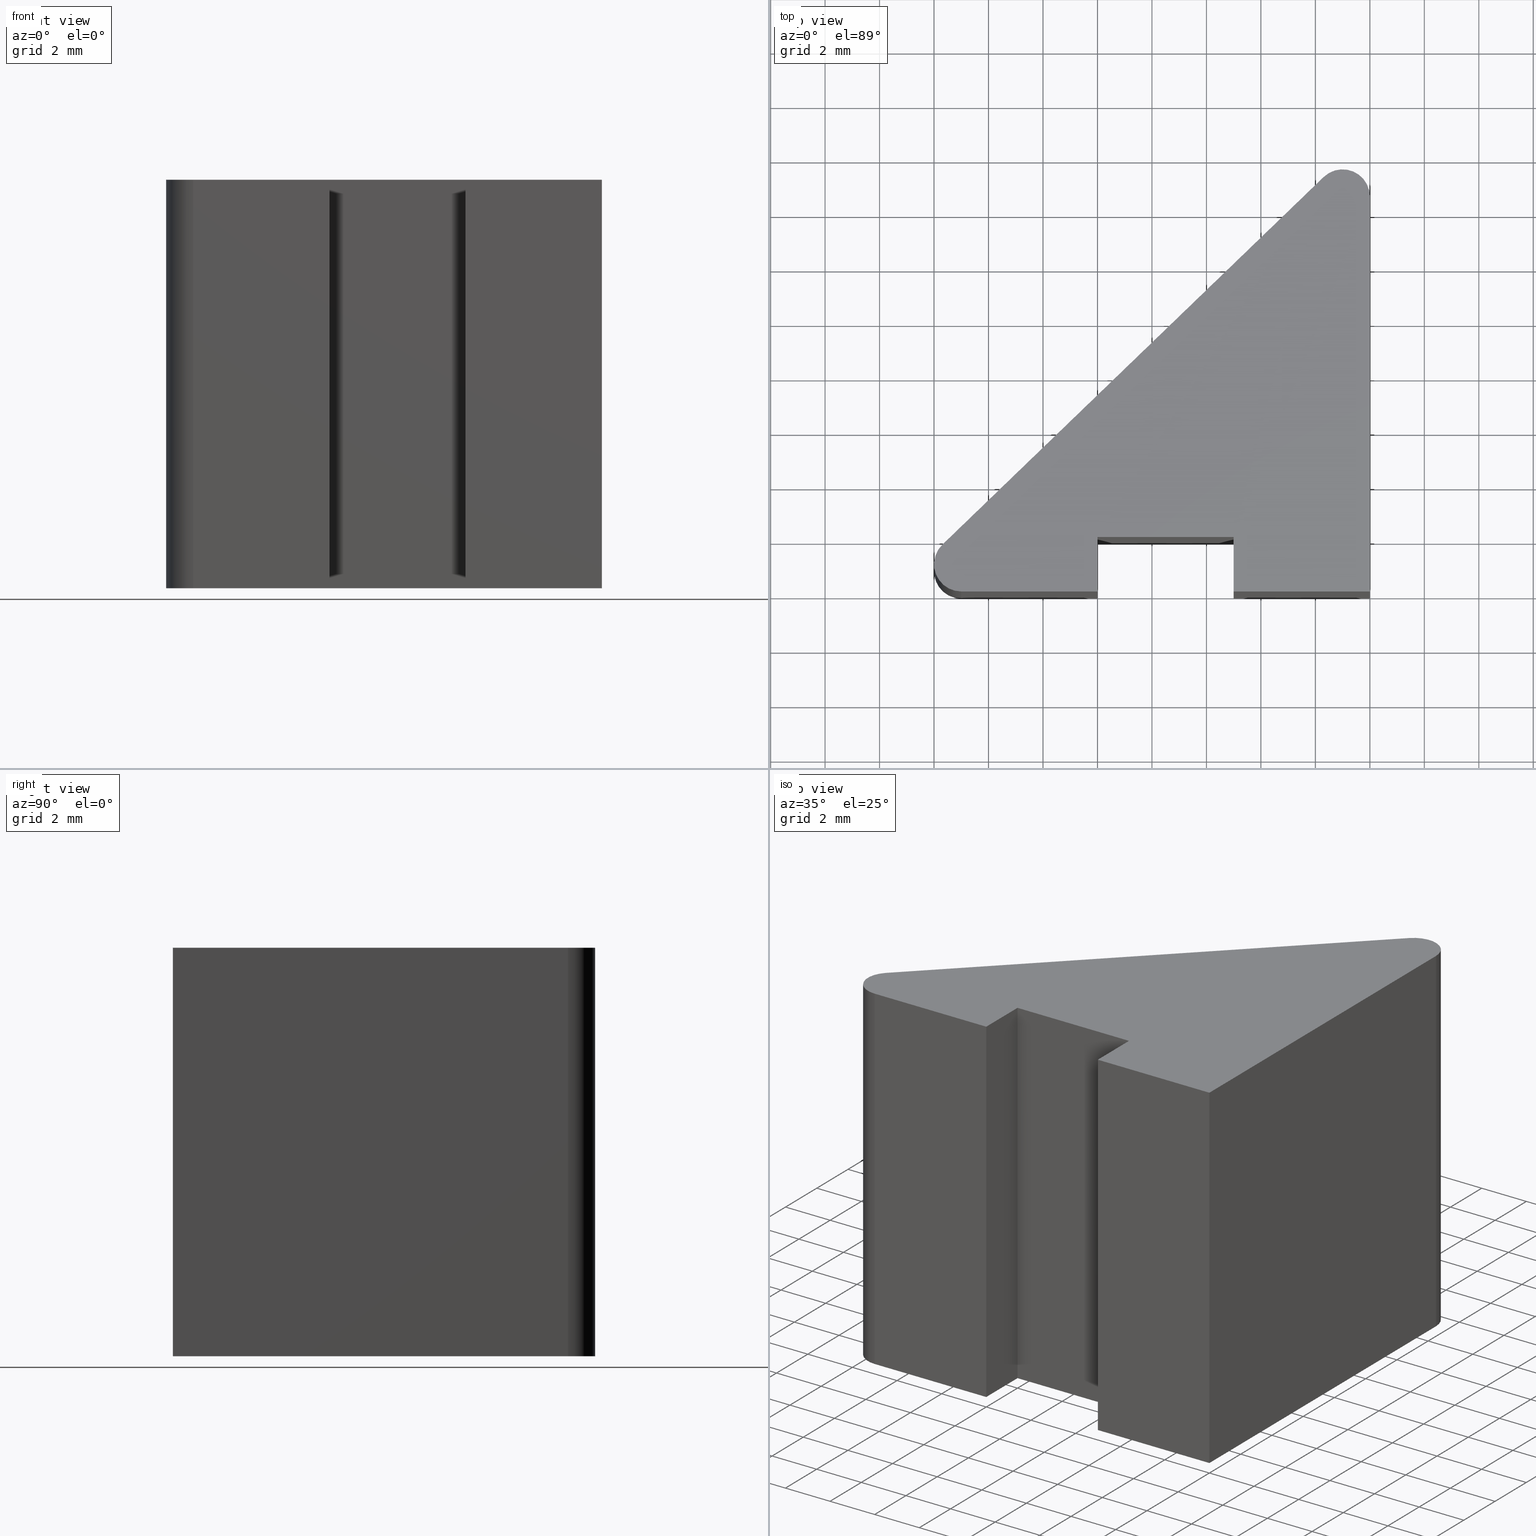
[diagram: canonical four-view strip — front | top / right | iso, engineering-drawing reading convention]
A machine part, canonical four-view strip (front | top / right | iso — engineering-drawing reading convention). The complete STEP part file that produces these views, byte-faithful:
ISO-10303-21;
HEADER;
/* Generated by software containing ST-Developer
 * from STEP Tools, Inc. (www.steptools.com) 
 */

FILE_DESCRIPTION(
/* description */ (''),
/* implementation_level */ '2;1');

FILE_NAME(
/* name */ 'E_3_01_06_06_00_WKZ-0231.stp',
/* time_stamp */ '2025-11-24T13:22:38+01:00',
/* author */ ('d.fischer'),
/* organization */ (''),
/* preprocessor_version */ 'ST-DEVELOPER v20',
/* originating_system */ 'Autodesk Inventor 2025',
/* authorisation */ '');

FILE_SCHEMA (('AUTOMOTIVE_DESIGN { 1 0 10303 214 3 1 1 }'));
ENDSEC;

DATA;
#10=MECHANICAL_DESIGN_GEOMETRIC_PRESENTATION_REPRESENTATION('',(#14,#15),
#362);
#11=SHAPE_REPRESENTATION_RELATIONSHIP('SRR','None',#369,#12);
#12=ADVANCED_BREP_SHAPE_REPRESENTATION('',(#13),#361);
#13=MANIFOLD_SOLID_BREP('Volumenk\X\F6rper1',#209);
#14=STYLED_ITEM('',(#379),#207);
#15=STYLED_ITEM('',(#378),#13);
#16=CYLINDRICAL_SURFACE('',#239,1.);
#17=CYLINDRICAL_SURFACE('',#242,1.);
#18=FACE_OUTER_BOUND('',#29,.T.);
#19=FACE_OUTER_BOUND('',#30,.T.);
#20=FACE_OUTER_BOUND('',#31,.T.);
#21=FACE_OUTER_BOUND('',#32,.T.);
#22=FACE_OUTER_BOUND('',#33,.T.);
#23=FACE_OUTER_BOUND('',#34,.T.);
#24=FACE_OUTER_BOUND('',#35,.T.);
#25=FACE_OUTER_BOUND('',#36,.T.);
#26=FACE_OUTER_BOUND('',#37,.T.);
#27=FACE_OUTER_BOUND('',#38,.T.);
#28=FACE_OUTER_BOUND('',#39,.T.);
#29=EDGE_LOOP('',(#135,#136,#137,#138,#139,#140,#141,#142,#143));
#30=EDGE_LOOP('',(#144,#145,#146,#147));
#31=EDGE_LOOP('',(#148,#149,#150,#151));
#32=EDGE_LOOP('',(#152,#153,#154,#155));
#33=EDGE_LOOP('',(#156,#157,#158,#159));
#34=EDGE_LOOP('',(#160,#161,#162,#163));
#35=EDGE_LOOP('',(#164,#165,#166,#167));
#36=EDGE_LOOP('',(#168,#169,#170,#171));
#37=EDGE_LOOP('',(#172,#173,#174,#175));
#38=EDGE_LOOP('',(#176,#177,#178,#179));
#39=EDGE_LOOP('',(#180,#181,#182,#183,#184,#185,#186,#187,#188));
#40=CIRCLE('',#233,1.);
#41=CIRCLE('',#234,1.);
#42=CIRCLE('',#240,1.);
#43=CIRCLE('',#243,1.);
#44=LINE('',#306,#67);
#45=LINE('',#308,#68);
#46=LINE('',#310,#69);
#47=LINE('',#312,#70);
#48=LINE('',#314,#71);
#49=LINE('',#316,#72);
#50=LINE('',#320,#73);
#51=LINE('',#325,#74);
#52=LINE('',#326,#75);
#53=LINE('',#327,#76);
#54=LINE('',#330,#77);
#55=LINE('',#331,#78);
#56=LINE('',#334,#79);
#57=LINE('',#335,#80);
#58=LINE('',#338,#81);
#59=LINE('',#339,#82);
#60=LINE('',#343,#83);
#61=LINE('',#346,#84);
#62=LINE('',#347,#85);
#63=LINE('',#351,#86);
#64=LINE('',#354,#87);
#65=LINE('',#355,#88);
#66=LINE('',#357,#89);
#67=VECTOR('',#251,10.);
#68=VECTOR('',#252,10.);
#69=VECTOR('',#253,10.);
#70=VECTOR('',#254,10.);
#71=VECTOR('',#255,10.);
#72=VECTOR('',#256,10.);
#73=VECTOR('',#259,10.);
#74=VECTOR('',#264,10.);
#75=VECTOR('',#265,10.);
#76=VECTOR('',#266,10.);
#77=VECTOR('',#269,10.);
#78=VECTOR('',#270,10.);
#79=VECTOR('',#273,10.);
#80=VECTOR('',#274,10.);
#81=VECTOR('',#277,10.);
#82=VECTOR('',#278,10.);
#83=VECTOR('',#283,10.);
#84=VECTOR('',#286,10.);
#85=VECTOR('',#287,10.);
#86=VECTOR('',#292,10.);
#87=VECTOR('',#295,10.);
#88=VECTOR('',#296,10.);
#89=VECTOR('',#299,10.);
#90=VERTEX_POINT('',#304);
#91=VERTEX_POINT('',#305);
#92=VERTEX_POINT('',#307);
#93=VERTEX_POINT('',#309);
#94=VERTEX_POINT('',#311);
#95=VERTEX_POINT('',#313);
#96=VERTEX_POINT('',#315);
#97=VERTEX_POINT('',#317);
#98=VERTEX_POINT('',#319);
#99=VERTEX_POINT('',#323);
#100=VERTEX_POINT('',#324);
#101=VERTEX_POINT('',#329);
#102=VERTEX_POINT('',#333);
#103=VERTEX_POINT('',#337);
#104=VERTEX_POINT('',#341);
#105=VERTEX_POINT('',#345);
#106=VERTEX_POINT('',#349);
#107=VERTEX_POINT('',#353);
#108=EDGE_CURVE('',#90,#91,#44,.T.);
#109=EDGE_CURVE('',#92,#90,#45,.T.);
#110=EDGE_CURVE('',#93,#92,#46,.T.);
#111=EDGE_CURVE('',#94,#93,#47,.T.);
#112=EDGE_CURVE('',#95,#94,#48,.T.);
#113=EDGE_CURVE('',#96,#95,#49,.T.);
#114=EDGE_CURVE('',#97,#96,#40,.T.);
#115=EDGE_CURVE('',#98,#97,#50,.T.);
#116=EDGE_CURVE('',#91,#98,#41,.T.);
#117=EDGE_CURVE('',#99,#100,#51,.T.);
#118=EDGE_CURVE('',#100,#93,#52,.T.);
#119=EDGE_CURVE('',#99,#92,#53,.T.);
#120=EDGE_CURVE('',#100,#101,#54,.T.);
#121=EDGE_CURVE('',#101,#94,#55,.T.);
#122=EDGE_CURVE('',#101,#102,#56,.T.);
#123=EDGE_CURVE('',#102,#95,#57,.T.);
#124=EDGE_CURVE('',#102,#103,#58,.T.);
#125=EDGE_CURVE('',#103,#96,#59,.T.);
#126=EDGE_CURVE('',#103,#104,#42,.T.);
#127=EDGE_CURVE('',#104,#97,#60,.T.);
#128=EDGE_CURVE('',#104,#105,#61,.T.);
#129=EDGE_CURVE('',#105,#98,#62,.T.);
#130=EDGE_CURVE('',#105,#106,#43,.T.);
#131=EDGE_CURVE('',#106,#91,#63,.T.);
#132=EDGE_CURVE('',#106,#107,#64,.T.);
#133=EDGE_CURVE('',#90,#107,#65,.T.);
#134=EDGE_CURVE('',#107,#99,#66,.T.);
#135=ORIENTED_EDGE('',*,*,#108,.F.);
#136=ORIENTED_EDGE('',*,*,#109,.F.);
#137=ORIENTED_EDGE('',*,*,#110,.F.);
#138=ORIENTED_EDGE('',*,*,#111,.F.);
#139=ORIENTED_EDGE('',*,*,#112,.F.);
#140=ORIENTED_EDGE('',*,*,#113,.F.);
#141=ORIENTED_EDGE('',*,*,#114,.F.);
#142=ORIENTED_EDGE('',*,*,#115,.F.);
#143=ORIENTED_EDGE('',*,*,#116,.F.);
#144=ORIENTED_EDGE('',*,*,#117,.T.);
#145=ORIENTED_EDGE('',*,*,#118,.T.);
#146=ORIENTED_EDGE('',*,*,#110,.T.);
#147=ORIENTED_EDGE('',*,*,#119,.F.);
#148=ORIENTED_EDGE('',*,*,#120,.T.);
#149=ORIENTED_EDGE('',*,*,#121,.T.);
#150=ORIENTED_EDGE('',*,*,#111,.T.);
#151=ORIENTED_EDGE('',*,*,#118,.F.);
#152=ORIENTED_EDGE('',*,*,#122,.T.);
#153=ORIENTED_EDGE('',*,*,#123,.T.);
#154=ORIENTED_EDGE('',*,*,#112,.T.);
#155=ORIENTED_EDGE('',*,*,#121,.F.);
#156=ORIENTED_EDGE('',*,*,#124,.T.);
#157=ORIENTED_EDGE('',*,*,#125,.T.);
#158=ORIENTED_EDGE('',*,*,#113,.T.);
#159=ORIENTED_EDGE('',*,*,#123,.F.);
#160=ORIENTED_EDGE('',*,*,#126,.T.);
#161=ORIENTED_EDGE('',*,*,#127,.T.);
#162=ORIENTED_EDGE('',*,*,#114,.T.);
#163=ORIENTED_EDGE('',*,*,#125,.F.);
#164=ORIENTED_EDGE('',*,*,#128,.T.);
#165=ORIENTED_EDGE('',*,*,#129,.T.);
#166=ORIENTED_EDGE('',*,*,#115,.T.);
#167=ORIENTED_EDGE('',*,*,#127,.F.);
#168=ORIENTED_EDGE('',*,*,#130,.T.);
#169=ORIENTED_EDGE('',*,*,#131,.T.);
#170=ORIENTED_EDGE('',*,*,#116,.T.);
#171=ORIENTED_EDGE('',*,*,#129,.F.);
#172=ORIENTED_EDGE('',*,*,#132,.T.);
#173=ORIENTED_EDGE('',*,*,#133,.F.);
#174=ORIENTED_EDGE('',*,*,#108,.T.);
#175=ORIENTED_EDGE('',*,*,#131,.F.);
#176=ORIENTED_EDGE('',*,*,#134,.T.);
#177=ORIENTED_EDGE('',*,*,#119,.T.);
#178=ORIENTED_EDGE('',*,*,#109,.T.);
#179=ORIENTED_EDGE('',*,*,#133,.T.);
#180=ORIENTED_EDGE('',*,*,#117,.F.);
#181=ORIENTED_EDGE('',*,*,#134,.F.);
#182=ORIENTED_EDGE('',*,*,#132,.F.);
#183=ORIENTED_EDGE('',*,*,#130,.F.);
#184=ORIENTED_EDGE('',*,*,#128,.F.);
#185=ORIENTED_EDGE('',*,*,#126,.F.);
#186=ORIENTED_EDGE('',*,*,#124,.F.);
#187=ORIENTED_EDGE('',*,*,#122,.F.);
#188=ORIENTED_EDGE('',*,*,#120,.F.);
#189=PLANE('',#232);
#190=PLANE('',#235);
#191=PLANE('',#236);
#192=PLANE('',#237);
#193=PLANE('',#238);
#194=PLANE('',#241);
#195=PLANE('',#244);
#196=PLANE('',#245);
#197=PLANE('',#246);
#198=ADVANCED_FACE('',(#18),#189,.F.);
#199=ADVANCED_FACE('',(#19),#190,.T.);
#200=ADVANCED_FACE('',(#20),#191,.T.);
#201=ADVANCED_FACE('',(#21),#192,.T.);
#202=ADVANCED_FACE('',(#22),#193,.T.);
#203=ADVANCED_FACE('',(#23),#16,.T.);
#204=ADVANCED_FACE('',(#24),#194,.T.);
#205=ADVANCED_FACE('',(#25),#17,.T.);
#206=ADVANCED_FACE('',(#26),#195,.T.);
#207=ADVANCED_FACE('',(#27),#196,.T.);
#208=ADVANCED_FACE('',(#28),#197,.T.);
#209=CLOSED_SHELL('',(#198,#199,#200,#201,#202,#203,#204,#205,#206,#207,
#208));
#210=DERIVED_UNIT_ELEMENT(#213,1.);
#211=DERIVED_UNIT_ELEMENT(#364,-3.);
#212=DIMENSIONAL_EXPONENTS(0.,1.,0.,0.,0.,0.,0.);
#213=(
CONVERSION_BASED_UNIT('gram',#215)
MASS_UNIT()
NAMED_UNIT(#212)
);
#214=(
MASS_UNIT()
NAMED_UNIT(*)
SI_UNIT(.KILO.,.GRAM.)
);
#215=MASS_MEASURE_WITH_UNIT(MASS_MEASURE(0.001),#214);
#216=DERIVED_UNIT((#210,#211));
#217=MEASURE_REPRESENTATION_ITEM('density measure',
POSITIVE_RATIO_MEASURE(8.03),#216);
#218=PROPERTY_DEFINITION_REPRESENTATION(#223,#220);
#219=PROPERTY_DEFINITION_REPRESENTATION(#224,#221);
#220=REPRESENTATION('material name',(#222),#361);
#221=REPRESENTATION('density',(#217),#361);
#222=DESCRIPTIVE_REPRESENTATION_ITEM('1.4301','1.4301');
#223=PROPERTY_DEFINITION('material property','material name',#371);
#224=PROPERTY_DEFINITION('material property','density of part',#371);
#225=DATE_TIME_ROLE('creation_date');
#226=APPLIED_DATE_AND_TIME_ASSIGNMENT(#227,#225,(#371));
#227=DATE_AND_TIME(#228,#229);
#228=CALENDAR_DATE(2011,26,10);
#229=LOCAL_TIME(0,0,0.,#230);
#230=COORDINATED_UNIVERSAL_TIME_OFFSET(0,0,.BEHIND.);
#231=AXIS2_PLACEMENT_3D('',#302,#247,#248);
#232=AXIS2_PLACEMENT_3D('',#303,#249,#250);
#233=AXIS2_PLACEMENT_3D('',#318,#257,#258);
#234=AXIS2_PLACEMENT_3D('',#321,#260,#261);
#235=AXIS2_PLACEMENT_3D('',#322,#262,#263);
#236=AXIS2_PLACEMENT_3D('',#328,#267,#268);
#237=AXIS2_PLACEMENT_3D('',#332,#271,#272);
#238=AXIS2_PLACEMENT_3D('',#336,#275,#276);
#239=AXIS2_PLACEMENT_3D('',#340,#279,#280);
#240=AXIS2_PLACEMENT_3D('',#342,#281,#282);
#241=AXIS2_PLACEMENT_3D('',#344,#284,#285);
#242=AXIS2_PLACEMENT_3D('',#348,#288,#289);
#243=AXIS2_PLACEMENT_3D('',#350,#290,#291);
#244=AXIS2_PLACEMENT_3D('',#352,#293,#294);
#245=AXIS2_PLACEMENT_3D('',#356,#297,#298);
#246=AXIS2_PLACEMENT_3D('',#358,#300,#301);
#247=DIRECTION('axis',(0.,0.,1.));
#248=DIRECTION('refdir',(1.,0.,0.));
#249=DIRECTION('center_axis',(0.,0.,1.));
#250=DIRECTION('ref_axis',(1.,0.,0.));
#251=DIRECTION('',(-3.04009397021587E-16,1.,0.));
#252=DIRECTION('',(1.,0.,0.));
#253=DIRECTION('',(0.,-1.,0.));
#254=DIRECTION('',(1.,1.11022302462516E-16,0.));
#255=DIRECTION('',(0.,1.,0.));
#256=DIRECTION('',(1.,1.09999327305771E-16,0.));
#257=DIRECTION('center_axis',(0.,0.,1.));
#258=DIRECTION('ref_axis',(0.694135570584232,-0.719844295420685,0.));
#259=DIRECTION('',(-0.719844295420685,-0.694135570584232,0.));
#260=DIRECTION('center_axis',(0.,0.,1.));
#261=DIRECTION('ref_axis',(-1.,0.,0.));
#262=DIRECTION('center_axis',(-1.,0.,0.));
#263=DIRECTION('ref_axis',(0.,0.,1.));
#264=DIRECTION('',(0.,1.,0.));
#265=DIRECTION('',(0.,0.,-1.));
#266=DIRECTION('',(0.,0.,-1.));
#267=DIRECTION('center_axis',(1.11022302462516E-16,-1.,0.));
#268=DIRECTION('ref_axis',(0.,0.,-1.));
#269=DIRECTION('',(-1.,-1.11022302462516E-16,0.));
#270=DIRECTION('',(0.,0.,-1.));
#271=DIRECTION('center_axis',(1.,0.,0.));
#272=DIRECTION('ref_axis',(0.,0.,-1.));
#273=DIRECTION('',(0.,-1.,0.));
#274=DIRECTION('',(0.,0.,-1.));
#275=DIRECTION('center_axis',(1.09999327305771E-16,-1.,0.));
#276=DIRECTION('ref_axis',(0.,0.,-1.));
#277=DIRECTION('',(-1.,-1.09999327305771E-16,0.));
#278=DIRECTION('',(0.,0.,-1.));
#279=DIRECTION('center_axis',(0.,0.,1.));
#280=DIRECTION('ref_axis',(0.694135570584232,-0.719844295420685,0.));
#281=DIRECTION('center_axis',(0.,0.,-1.));
#282=DIRECTION('ref_axis',(0.694135570584232,-0.719844295420685,0.));
#283=DIRECTION('',(0.,0.,-1.));
#284=DIRECTION('center_axis',(-0.694135570584232,0.719844295420685,0.));
#285=DIRECTION('ref_axis',(0.,0.,1.));
#286=DIRECTION('',(0.719844295420685,0.694135570584232,0.));
#287=DIRECTION('',(0.,0.,-1.));
#288=DIRECTION('center_axis',(0.,0.,1.));
#289=DIRECTION('ref_axis',(-1.,0.,0.));
#290=DIRECTION('center_axis',(0.,0.,-1.));
#291=DIRECTION('ref_axis',(-1.,0.,0.));
#292=DIRECTION('',(0.,0.,-1.));
#293=DIRECTION('center_axis',(1.,3.04009397021587E-16,0.));
#294=DIRECTION('ref_axis',(0.,0.,-1.));
#295=DIRECTION('',(3.04009397021587E-16,-1.,0.));
#296=DIRECTION('',(0.,0.,1.));
#297=DIRECTION('center_axis',(0.,-1.,0.));
#298=DIRECTION('ref_axis',(0.,0.,-1.));
#299=DIRECTION('',(-1.,0.,0.));
#300=DIRECTION('center_axis',(0.,0.,1.));
#301=DIRECTION('ref_axis',(1.,0.,0.));
#302=CARTESIAN_POINT('',(0.,0.,0.));
#303=CARTESIAN_POINT('Origin',(-6.07845381438682,5.56838606184913,-7.5));
#304=CARTESIAN_POINT('',(5.65713715951632E-15,0.,-7.5));
#305=CARTESIAN_POINT('',(1.2490009027033E-15,14.5,-7.5));
#306=CARTESIAN_POINT('',(1.2490009027033E-15,14.5,-7.5));
#307=CARTESIAN_POINT('',(-5.,0.,-7.5));
#308=CARTESIAN_POINT('',(5.65713715951632E-15,0.,-7.5));
#309=CARTESIAN_POINT('',(-5.,2.,-7.5));
#310=CARTESIAN_POINT('',(-5.,0.,-7.5));
#311=CARTESIAN_POINT('',(-10.,2.,-7.5));
#312=CARTESIAN_POINT('',(-5.,2.,-7.5));
#313=CARTESIAN_POINT('',(-10.,2.21533117346659E-15,-7.5));
#314=CARTESIAN_POINT('',(-10.,2.,-7.5));
#315=CARTESIAN_POINT('',(-15.,1.66533453693773E-15,-7.5));
#316=CARTESIAN_POINT('',(-10.,2.21533117346659E-15,-7.5));
#317=CARTESIAN_POINT('',(-15.6941355705842,1.71984429542069,-7.5));
#318=CARTESIAN_POINT('Origin',(-15.,1.,-7.5));
#319=CARTESIAN_POINT('',(-1.69413557058423,15.2198442954207,-7.5));
#320=CARTESIAN_POINT('',(-15.6941355705842,1.71984429542069,-7.5));
#321=CARTESIAN_POINT('Origin',(-1.,14.5,-7.5));
#322=CARTESIAN_POINT('Origin',(-5.,0.,0.));
#323=CARTESIAN_POINT('',(-5.,0.,7.5));
#324=CARTESIAN_POINT('',(-5.,2.,7.5));
#325=CARTESIAN_POINT('',(-5.,0.,7.5));
#326=CARTESIAN_POINT('',(-5.,2.,0.));
#327=CARTESIAN_POINT('',(-5.,0.,0.));
#328=CARTESIAN_POINT('Origin',(-5.,2.,0.));
#329=CARTESIAN_POINT('',(-10.,2.,7.5));
#330=CARTESIAN_POINT('',(-5.,2.,7.5));
#331=CARTESIAN_POINT('',(-10.,2.,0.));
#332=CARTESIAN_POINT('Origin',(-10.,2.,0.));
#333=CARTESIAN_POINT('',(-10.,2.21533117346659E-15,7.5));
#334=CARTESIAN_POINT('',(-10.,2.,7.5));
#335=CARTESIAN_POINT('',(-10.,2.21533117346659E-15,0.));
#336=CARTESIAN_POINT('Origin',(-10.,2.21533117346659E-15,0.));
#337=CARTESIAN_POINT('',(-15.,1.66533453693773E-15,7.5));
#338=CARTESIAN_POINT('',(-10.,2.21533117346659E-15,7.5));
#339=CARTESIAN_POINT('',(-15.,1.66533453693773E-15,0.));
#340=CARTESIAN_POINT('Origin',(-15.,1.,0.));
#341=CARTESIAN_POINT('',(-15.6941355705842,1.71984429542069,7.5));
#342=CARTESIAN_POINT('Origin',(-15.,1.,7.5));
#343=CARTESIAN_POINT('',(-15.6941355705842,1.71984429542069,0.));
#344=CARTESIAN_POINT('Origin',(-15.6941355705842,1.71984429542069,0.));
#345=CARTESIAN_POINT('',(-1.69413557058423,15.2198442954207,7.5));
#346=CARTESIAN_POINT('',(-15.6941355705842,1.71984429542069,7.5));
#347=CARTESIAN_POINT('',(-1.69413557058423,15.2198442954207,0.));
#348=CARTESIAN_POINT('Origin',(-1.,14.5,0.));
#349=CARTESIAN_POINT('',(1.2490009027033E-15,14.5,7.5));
#350=CARTESIAN_POINT('Origin',(-1.,14.5,7.5));
#351=CARTESIAN_POINT('',(1.2490009027033E-15,14.5,0.));
#352=CARTESIAN_POINT('Origin',(1.2490009027033E-15,14.5,0.));
#353=CARTESIAN_POINT('',(5.65713715951632E-15,0.,7.5));
#354=CARTESIAN_POINT('',(1.2490009027033E-15,14.5,7.5));
#355=CARTESIAN_POINT('',(5.65713715951632E-15,0.,0.));
#356=CARTESIAN_POINT('Origin',(5.65713715951632E-15,0.,0.));
#357=CARTESIAN_POINT('',(5.65713715951632E-15,0.,7.5));
#358=CARTESIAN_POINT('Origin',(-6.07845381438682,5.56838606184913,7.5));
#359=UNCERTAINTY_MEASURE_WITH_UNIT(LENGTH_MEASURE(0.01),#363,
'DISTANCE_ACCURACY_VALUE',
'Maximum model space distance between geometric entities at asserted c
onnectivities');
#360=UNCERTAINTY_MEASURE_WITH_UNIT(LENGTH_MEASURE(0.01),#363,
'DISTANCE_ACCURACY_VALUE',
'Maximum model space distance between geometric entities at asserted c
onnectivities');
#361=(
GEOMETRIC_REPRESENTATION_CONTEXT(3)
GLOBAL_UNCERTAINTY_ASSIGNED_CONTEXT((#359))
GLOBAL_UNIT_ASSIGNED_CONTEXT((#363,#365,#366))
REPRESENTATION_CONTEXT('','3D')
);
#362=(
GEOMETRIC_REPRESENTATION_CONTEXT(3)
GLOBAL_UNCERTAINTY_ASSIGNED_CONTEXT((#360))
GLOBAL_UNIT_ASSIGNED_CONTEXT((#363,#365,#366))
REPRESENTATION_CONTEXT('','3D')
);
#363=(
LENGTH_UNIT()
NAMED_UNIT(*)
SI_UNIT(.MILLI.,.METRE.)
);
#364=(
LENGTH_UNIT()
NAMED_UNIT(*)
SI_UNIT(.CENTI.,.METRE.)
);
#365=(
NAMED_UNIT(*)
PLANE_ANGLE_UNIT()
SI_UNIT($,.RADIAN.)
);
#366=(
NAMED_UNIT(*)
SI_UNIT($,.STERADIAN.)
SOLID_ANGLE_UNIT()
);
#367=SHAPE_DEFINITION_REPRESENTATION(#368,#369);
#368=PRODUCT_DEFINITION_SHAPE('',$,#371);
#369=SHAPE_REPRESENTATION('',(#231),#361);
#370=PRODUCT_DEFINITION_CONTEXT('part definition',#375,'design');
#371=PRODUCT_DEFINITION('WKZ-0231','E_3_01_06_06_00_WKZ-0231',#372,#370);
#372=PRODUCT_DEFINITION_FORMATION('',$,#377);
#373=PRODUCT_RELATED_PRODUCT_CATEGORY('E_3_01_06_06_00_WKZ-0231',
'E_3_01_06_06_00_WKZ-0231',(#377));
#374=APPLICATION_PROTOCOL_DEFINITION('international standard',
'automotive_design',2009,#375);
#375=APPLICATION_CONTEXT(
'Core Data for Automotive Mechanical Design Process');
#376=PRODUCT_CONTEXT('part definition',#375,'mechanical');
#377=PRODUCT('WKZ-0231','E_3_01_06_06_00_WKZ-0231',$,(#376));
#378=PRESENTATION_STYLE_ASSIGNMENT((#380));
#379=PRESENTATION_STYLE_ASSIGNMENT((#381));
#380=SURFACE_STYLE_USAGE(.BOTH.,#384);
#381=SURFACE_STYLE_USAGE(.BOTH.,#385);
#382=SURFACE_STYLE_RENDERING_WITH_PROPERTIES($,#392,(#383));
#383=SURFACE_STYLE_TRANSPARENT(0.);
#384=SURFACE_SIDE_STYLE('',(#386,#382));
#385=SURFACE_SIDE_STYLE('',(#387));
#386=SURFACE_STYLE_FILL_AREA(#388);
#387=SURFACE_STYLE_FILL_AREA(#389);
#388=FILL_AREA_STYLE('',(#390));
#389=FILL_AREA_STYLE('',(#391));
#390=FILL_AREA_STYLE_COLOUR('',#392);
#391=FILL_AREA_STYLE_COLOUR('',#393);
#392=COLOUR_RGB('',0.92156862745098,0.92156862745098,0.92156862745098);
#393=COLOUR_RGB('',0.16078431372549,0.16078431372549,0.16078431372549);
ENDSEC;
END-ISO-10303-21;
